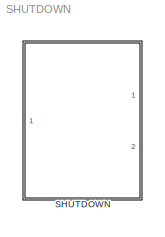
MODEL SHUTDOWN
KIND library
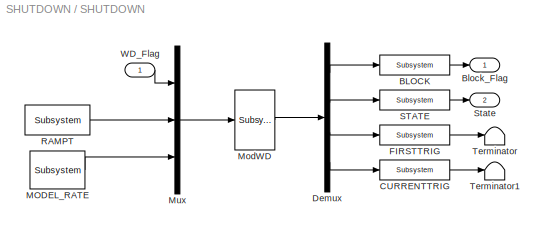
BLOCK [SubSystem] SHUTDOWN
  Ports = [1, 2]
  RequestExecContextInheritance = off
  SID = 14
  Variant = off
BLOCK [Reference] SHUTDOWN/BLOCK  REF=cdsEpicsOut/Subsystem
  AttributesFormatString = %<Tag>
  Description = Purpose:                                          \nOutput a FE signal to an EPICS channel.           \n                                                  \nOperation:                                        \nTakes input value and passes it to EPICS record.  \n                                                  \nUsage:                                            \nName the part with the desired EPICS...<+14ch>  <repeated x4 — deduplicated; at blocks: BLOCK, CURRENTTRIG, FIRSTTRIG, STATE>
  Ports = [1, 1]
  SID = 8
  SourceBlock = cdsEpicsOut/Subsystem
  SourceType = SubSystem
  Tag = cdsEpicsOutput
BLOCK [Outport] SHUTDOWN/Block_Flag
  IconDisplay = Port number
  SID = 16
BLOCK [Reference] SHUTDOWN/CURRENTTRIG  REF=cdsEpicsOut/Subsystem
  AttributesFormatString = %<Tag>
  Ports = [1, 1]
  SID = 11
  SourceBlock = cdsEpicsOut/Subsystem
  SourceType = SubSystem
  Tag = cdsEpicsOutput
BLOCK [Demux] SHUTDOWN/Demux
  DisplayOption = bar
  Ports = [1, 4]
  SID = 1
BLOCK [Reference] SHUTDOWN/FIRSTTRIG  REF=cdsEpicsOut/Subsystem
  AttributesFormatString = %<Tag>
  Ports = [1, 1]
  SID = 10
  SourceBlock = cdsEpicsOut/Subsystem
  SourceType = SubSystem
  Tag = cdsEpicsOutput
BLOCK [Reference] SHUTDOWN/MODEL_RATE  REF=cdsModelRate/Subsystem
  AttributesFormatString = %<Tag>
  Ports = [0, 1]
  SID = 7
  SourceBlock = cdsModelRate/Subsystem
  SourceType = SubSystem
  Tag = cdsModelRate
BLOCK [Reference] SHUTDOWN/ModWD  REF=cdsFunctionCall/Subsystem
  AttributesFormatString = %<Tag>
  Description = inline ModerateWD <path>
  Ports = [1, 1]
  SID = 2
  SourceBlock = cdsFunctionCall/Subsystem
  SourceType = SubSystem
  Tag = cdsFunctionCall
BLOCK [Mux] SHUTDOWN/Mux
  DisplayOption = bar
  Inputs = 3
  Ports = [3, 1]
  SID = 3
BLOCK [Reference] SHUTDOWN/RAMPT  REF=cdsEpicsIn/Subsystem
  AttributesFormatString = %<Tag>
  Description = Purpose:                                                                              \nCreate an EPICS input channel connection to the FE realtime controls.                 \n                                                                                      \nOperation:                                                                            \nOutputs value from an EPICS ai record. Value is ...<+266ch>
  Ports = [0, 1]
  SID = 6
  SourceBlock = cdsEpicsIn/Subsystem
  SourceType = SubSystem
  Tag = cdsEpicsIn
BLOCK [Reference] SHUTDOWN/STATE  REF=cdsEpicsOut/Subsystem
  AttributesFormatString = %<Tag>
  Ports = [1, 1]
  SID = 9
  SourceBlock = cdsEpicsOut/Subsystem
  SourceType = SubSystem
  Tag = cdsEpicsOutput
BLOCK [Outport] SHUTDOWN/State
  IconDisplay = Port number
  Port = 2
  SID = 17
BLOCK [Terminator] SHUTDOWN/Terminator
  SID = 12
BLOCK [Terminator] SHUTDOWN/Terminator1
  SID = 13
BLOCK [Inport] SHUTDOWN/WD_Flag
  IconDisplay = Port number
  SID = 15
LINE SHUTDOWN/BLOCK:1 -> SHUTDOWN/Block_Flag:1
LINE SHUTDOWN/CURRENTTRIG:1 -> SHUTDOWN/Terminator1:1
LINE SHUTDOWN/Demux:1 -> SHUTDOWN/BLOCK:1
LINE SHUTDOWN/Demux:2 -> SHUTDOWN/STATE:1
LINE SHUTDOWN/Demux:3 -> SHUTDOWN/FIRSTTRIG:1
LINE SHUTDOWN/Demux:4 -> SHUTDOWN/CURRENTTRIG:1
LINE SHUTDOWN/FIRSTTRIG:1 -> SHUTDOWN/Terminator:1
LINE SHUTDOWN/MODEL_RATE:1 -> SHUTDOWN/Mux:3
LINE SHUTDOWN/ModWD:1 -> SHUTDOWN/Demux:1
LINE SHUTDOWN/Mux:1 -> SHUTDOWN/ModWD:1
LINE SHUTDOWN/RAMPT:1 -> SHUTDOWN/Mux:2
LINE SHUTDOWN/STATE:1 -> SHUTDOWN/State:1
LINE SHUTDOWN/WD_Flag:1 -> SHUTDOWN/Mux:1
note: 1 file-system path scrubbed to <path> (not preserved elsewhere — flat text is the only slx artifact)
